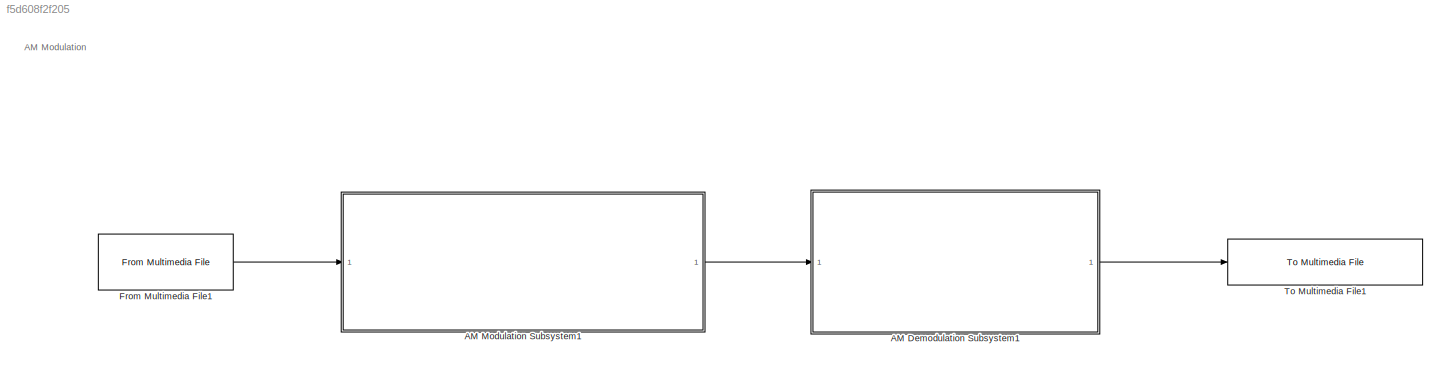
MODEL slx_f5d608f2f205
KIND model
CONFIG AbsTol = auto
CONFIG EnableMultiTasking = off
CONFIG FixedStep = auto
CONFIG MaxStep = auto
CONFIG MinStep = auto
CONFIG RelTol = 1e-3
CONFIG SampleTimeConstraint = Unconstrained
CONFIG SolverName = VariableStepAuto
CONFIG StartTime = 0.0
CONFIG StopTime = 10.0
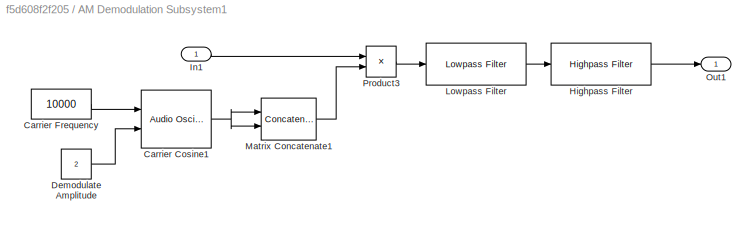
BLOCK [SubSystem]  AM Demodulation Subsystem1
  Ports = [1, 1]
  RequestExecContextInheritance = off
BLOCK [Reference]  AM Demodulation Subsystem1/Carrier Cosine1  REF=audiosources/Audio Oscillator
  Ports = [2, 1]
  SourceBlock = audiosources/Audio Oscillator
  SourceProductBaseCode = AU
  SourceType = audio.simulink.AudioOscillator
BLOCK [Constant]  AM Demodulation Subsystem1/Carrier Frequency
  Value = 10000
BLOCK [Constant]  AM Demodulation Subsystem1/Demodulate Amplitude
  Value = 2
BLOCK [Reference]  AM Demodulation Subsystem1/Highpass Filter  REF=dspfdesign/Highpass Filter
  Ports = [1, 1]
  SourceBlock = dspfdesign/Highpass Filter
  SourceProductBaseCode = DS
  SourceType = dsp.HighpassFilter
BLOCK [Inport]  AM Demodulation Subsystem1/In1
BLOCK [Reference]  AM Demodulation Subsystem1/Lowpass Filter  REF=dspfdesign/Lowpass Filter
  Ports = [1, 1]
  SourceBlock = dspfdesign/Lowpass Filter
  SourceProductBaseCode = DS
  SourceType = dsp.LowpassFilter
BLOCK [Concatenate]  AM Demodulation Subsystem1/Matrix Concatenate1
  ConcatenateDimension = 2
  Mode = Multidimensional array
  Ports = [2, 1]
BLOCK [Outport]  AM Demodulation Subsystem1/Out1
BLOCK [Product]  AM Demodulation Subsystem1/Product3
  Ports = [2, 1]
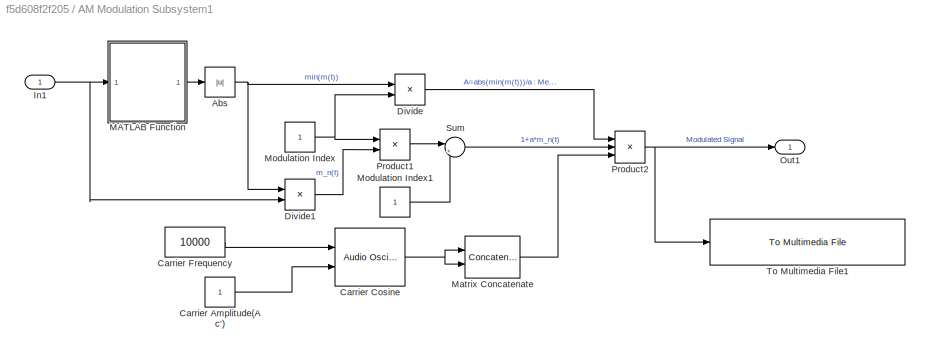
BLOCK [SubSystem] AM Modulation Subsystem1
  Ports = [1, 1]
  RequestExecContextInheritance = off
BLOCK [Abs] AM Modulation Subsystem1/Abs
  SaturateOnIntegerOverflow = off
BLOCK [Constant] AM Modulation Subsystem1/Carrier Amplitude(Ac')
BLOCK [Reference] AM Modulation Subsystem1/Carrier Cosine  REF=audiosources/Audio Oscillator
  Ports = [2, 1]
  SourceBlock = audiosources/Audio Oscillator
  SourceProductBaseCode = AU
  SourceType = audio.simulink.AudioOscillator
BLOCK [Constant] AM Modulation Subsystem1/Carrier Frequency
  Value = 10000
BLOCK [Product] AM Modulation Subsystem1/Divide
  Inputs = */
  Ports = [2, 1]
BLOCK [Product] AM Modulation Subsystem1/Divide1
  Inputs = /*
  Ports = [2, 1]
BLOCK [Inport] AM Modulation Subsystem1/In1
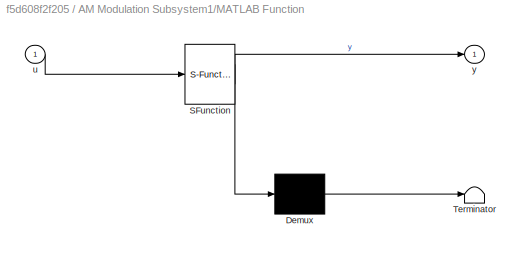
BLOCK [SubSystem] AM Modulation Subsystem1/MATLAB Function
  ErrorFcn = Stateflow.Translate.translate
  PermitHierarchicalResolution = ExplicitOnly
  Ports = [1, 1]
  RequestExecContextInheritance = off
  SFBlockType = MATLAB Function
  TreatAsAtomicUnit = on
BLOCK [Demux] AM Modulation Subsystem1/MATLAB Function/ Demux 
  Outputs = 1
  Ports = [1, 1]
BLOCK [S-Function] AM Modulation Subsystem1/MATLAB Function/ SFunction 
  EnableBusSupport = on
  FunctionName = sf_sfun
  PortCounts = [1 2]
  Ports = [1, 2]
  SFcnIsStateOwnerBlock = off
  SFunctionDeploymentMode = off
  Tag = Stateflow S-Function 5
BLOCK [Terminator] AM Modulation Subsystem1/MATLAB Function/ Terminator 
BLOCK [Inport] AM Modulation Subsystem1/MATLAB Function/u
BLOCK [Outport] AM Modulation Subsystem1/MATLAB Function/y
BLOCK [Concatenate] AM Modulation Subsystem1/Matrix Concatenate
  ConcatenateDimension = 2
  Mode = Multidimensional array
  Ports = [2, 1]
BLOCK [Constant] AM Modulation Subsystem1/Modulation Index
BLOCK [Constant] AM Modulation Subsystem1/Modulation Index1
BLOCK [Outport] AM Modulation Subsystem1/Out1
BLOCK [Product] AM Modulation Subsystem1/Product1
  Ports = [2, 1]
BLOCK [Product] AM Modulation Subsystem1/Product2
  Inputs = 3
  Ports = [3, 1]
BLOCK [Sum] AM Modulation Subsystem1/Sum
  Inputs = |++
  Ports = [2, 1]
BLOCK [Reference] AM Modulation Subsystem1/To Multimedia File1  REF=dspvision/To Multimedia File
  Ports = [1]
  SourceBlock = dspvision/To Multimedia File
  SourceProductBaseCode = DS,HW,VP
  SourceType = To Multimedia File
BLOCK [Reference] From Multimedia File1  REF=dspvision/From Multimedia File
  Ports = [0, 1]
  SourceBlock = dspvision/From Multimedia File
  SourceProductBaseCode = DS,HW,VP
  SourceType = From Multimedia File
BLOCK [Reference] To Multimedia File1  REF=dspvision/To Multimedia File
  Ports = [1]
  SourceBlock = dspvision/To Multimedia File
  SourceProductBaseCode = DS,HW,VP
  SourceType = To Multimedia File
ANNOTATION (root): AM Modulation
NET  AM Demodulation Subsystem1/Carrier Cosine1:1 ->  AM Demodulation Subsystem1/Matrix Concatenate1:1,  AM Demodulation Subsystem1/Matrix Concatenate1:2
LINE  AM Demodulation Subsystem1/Carrier Frequency:1 ->  AM Demodulation Subsystem1/Carrier Cosine1:1
LINE  AM Demodulation Subsystem1/Demodulate Amplitude:1 ->  AM Demodulation Subsystem1/Carrier Cosine1:2
LINE  AM Demodulation Subsystem1/Highpass Filter:1 ->  AM Demodulation Subsystem1/Out1:1
LINE  AM Demodulation Subsystem1/In1:1 ->  AM Demodulation Subsystem1/Product3:1
LINE  AM Demodulation Subsystem1/Lowpass Filter:1 ->  AM Demodulation Subsystem1/Highpass Filter:1
LINE  AM Demodulation Subsystem1/Matrix Concatenate1:1 ->  AM Demodulation Subsystem1/Product3:2
LINE  AM Demodulation Subsystem1/Product3:1 ->  AM Demodulation Subsystem1/Lowpass Filter:1
LINE  AM Demodulation Subsystem1:1 -> To Multimedia File1:1
NET AM Modulation Subsystem1/Abs:1 -> AM Modulation Subsystem1/Divide1:1, AM Modulation Subsystem1/Divide:1
LINE AM Modulation Subsystem1/Carrier Amplitude(Ac'):1 -> AM Modulation Subsystem1/Carrier Cosine:2
NET AM Modulation Subsystem1/Carrier Cosine:1 -> AM Modulation Subsystem1/Matrix Concatenate:1, AM Modulation Subsystem1/Matrix Concatenate:2
LINE AM Modulation Subsystem1/Carrier Frequency:1 -> AM Modulation Subsystem1/Carrier Cosine:1
LINE AM Modulation Subsystem1/Divide1:1 -> AM Modulation Subsystem1/Product1:2
LINE AM Modulation Subsystem1/Divide:1 -> AM Modulation Subsystem1/Product2:1
NET AM Modulation Subsystem1/In1:1 -> AM Modulation Subsystem1/Divide1:2, AM Modulation Subsystem1/MATLAB Function:1
LINE AM Modulation Subsystem1/MATLAB Function:1 -> AM Modulation Subsystem1/Abs:1
LINE AM Modulation Subsystem1/Matrix Concatenate:1 -> AM Modulation Subsystem1/Product2:3
LINE AM Modulation Subsystem1/Modulation Index1:1 -> AM Modulation Subsystem1/Sum:2
NET AM Modulation Subsystem1/Modulation Index:1 -> AM Modulation Subsystem1/Divide:2, AM Modulation Subsystem1/Product1:1
LINE AM Modulation Subsystem1/Product1:1 -> AM Modulation Subsystem1/Sum:1
NET AM Modulation Subsystem1/Product2:1 -> AM Modulation Subsystem1/Out1:1, AM Modulation Subsystem1/To Multimedia File1:1
LINE AM Modulation Subsystem1/Sum:1 -> AM Modulation Subsystem1/Product2:2
LINE AM Modulation Subsystem1:1 ->  AM Demodulation Subsystem1:1
LINE From Multimedia File1:1 -> AM Modulation Subsystem1:1
note: NET lines group one-source signal fan-out (src -> all destinations, sorted); 1:1 wires keep LINE
CHART AM Modulation Subsystem1/MATLAB Function states=1 transitions=1
  STATE_LABEL 'eML_blk_kernel()'
  STATE_LABEL 'SCRIPT:\nfunction y = min_columns(u)\nmin_val=min(u);\n[rows,cols]=size(u);\ny= repmat(min_val,rows,1);\nend\n'
CHART  states=0 transitions=0
